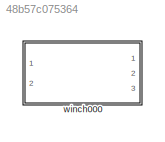
MODEL slx_48b57c075364
KIND library
CONFIG AbsTol = auto
CONFIG EnableMultiTasking = off
CONFIG FixedStep = auto
CONFIG MaxStep = auto
CONFIG MinStep = auto
CONFIG RelTol = 1e-3
CONFIG SampleTimeConstraint = Unconstrained
CONFIG SolverName = VariableStepAuto
CONFIG StartTime = 0.0
CONFIG StopTime = 10.0
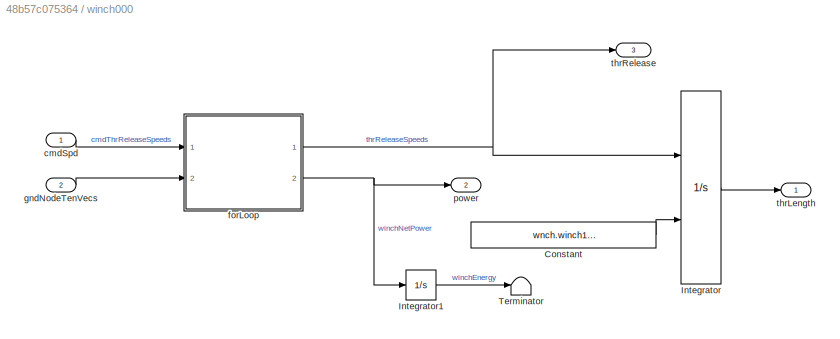
BLOCK [SubSystem] winch000
  Ports = [2, 3]
  RequestExecContextInheritance = off
  VariantControl = VSS_winch_winch000
BLOCK [Constant] winch000/Constant
  Value = wnch.winch1.initLength.Value
  VectorParams1D = off
BLOCK [Integrator] winch000/Integrator
  InitialConditionSource = external
  Ports = [2, 1]
BLOCK [Integrator] winch000/Integrator1
  Ports = [1, 1]
BLOCK [Terminator] winch000/Terminator
BLOCK [Inport] winch000/cmdSpd
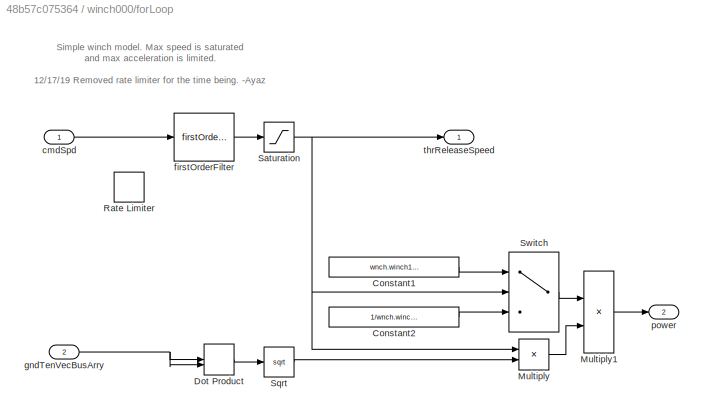
BLOCK [SubSystem] winch000/forLoop
  Ports = [2, 2]
  RequestExecContextInheritance = off
BLOCK [Constant] winch000/forLoop/Constant1
  Value = wnch.winch1.generatorEfficiency.Value
BLOCK [Constant] winch000/forLoop/Constant2
  Value = 1/wnch.winch1.motorEfficiency.Value
BLOCK [DotProduct] winch000/forLoop/Dot Product
  OutDataTypeStr = Inherit: Inherit via internal rule
BLOCK [Product] winch000/forLoop/Multiply
  Ports = [2, 1]
BLOCK [Product] winch000/forLoop/Multiply1
  Ports = [2, 1]
BLOCK [RateLimiter] winch000/forLoop/Rate Limiter
  Commented = on
  FallingSlewLimit = -wnch.maxAccel
  RisingSlewLimit = wnch.maxAccel
  SampleTimeMode = inherited
BLOCK [Saturate] winch000/forLoop/Saturation
  LinearizeAsGain = off
  LowerLimit = -wnch.winch1.maxSpeed.Value
  UpperLimit = wnch.winch1.maxSpeed.Value
BLOCK [Sqrt] winch000/forLoop/Sqrt
BLOCK [Switch] winch000/forLoop/Switch
  Criteria = u2 > Threshold
  InputSameDT = off
  SaturateOnIntegerOverflow = off
BLOCK [Inport] winch000/forLoop/cmdSpd
BLOCK [Reference] winch000/forLoop/firstOrderFilter  REF=firstOrderFilter_ul/firstOrderFilter
  Ports = [1, 1]
  SourceBlock = firstOrderFilter_ul/firstOrderFilter
BLOCK [Inport] winch000/forLoop/gndTenVecBusArry
  Port = 2
BLOCK [Outport] winch000/forLoop/power
  Port = 2
  VectorParamsAs1DForOutWhenUnconnected = off
BLOCK [Outport] winch000/forLoop/thrReleaseSpeed
  VectorParamsAs1DForOutWhenUnconnected = off
BLOCK [Inport] winch000/gndNodeTenVecs
  Port = 2
BLOCK [Outport] winch000/power
  Port = 2
  VectorParamsAs1DForOutWhenUnconnected = off
BLOCK [Outport] winch000/thrLength
  VectorParamsAs1DForOutWhenUnconnected = off
BLOCK [Outport] winch000/thrRelease 
  Port = 3
  VectorParamsAs1DForOutWhenUnconnected = off
ANNOTATION winch000/forLoop: Simple winch model. Max speed is saturated and max acceleration is limited. 12/17/19 Removed rate limiter for the time being. -Ayaz
LINE winch000/Constant:1 -> winch000/Integrator:2
LINE winch000/Integrator1:1 -> winch000/Terminator:1
LINE winch000/Integrator:1 -> winch000/thrLength:1
LINE winch000/cmdSpd:1 -> winch000/forLoop:1
LINE winch000/forLoop/Constant1:1 -> winch000/forLoop/Switch:1
LINE winch000/forLoop/Constant2:1 -> winch000/forLoop/Switch:3
LINE winch000/forLoop/Dot Product:1 -> winch000/forLoop/Sqrt:1
LINE winch000/forLoop/Multiply1:1 -> winch000/forLoop/power:1
LINE winch000/forLoop/Multiply:1 -> winch000/forLoop/Multiply1:2
NET winch000/forLoop/Saturation:1 -> winch000/forLoop/Multiply:1, winch000/forLoop/Switch:2, winch000/forLoop/thrReleaseSpeed:1
LINE winch000/forLoop/Sqrt:1 -> winch000/forLoop/Multiply:2
LINE winch000/forLoop/Switch:1 -> winch000/forLoop/Multiply1:1
LINE winch000/forLoop/cmdSpd:1 -> winch000/forLoop/firstOrderFilter:1
LINE winch000/forLoop/firstOrderFilter:1 -> winch000/forLoop/Saturation:1
NET winch000/forLoop/gndTenVecBusArry:1 -> winch000/forLoop/Dot Product:1, winch000/forLoop/Dot Product:2
NET winch000/forLoop:1 -> winch000/Integrator:1, winch000/thrRelease :1
NET winch000/forLoop:2 -> winch000/Integrator1:1, winch000/power:1
LINE winch000/gndNodeTenVecs:1 -> winch000/forLoop:2
note: NET lines group one-source signal fan-out (src -> all destinations, sorted); 1:1 wires keep LINE
